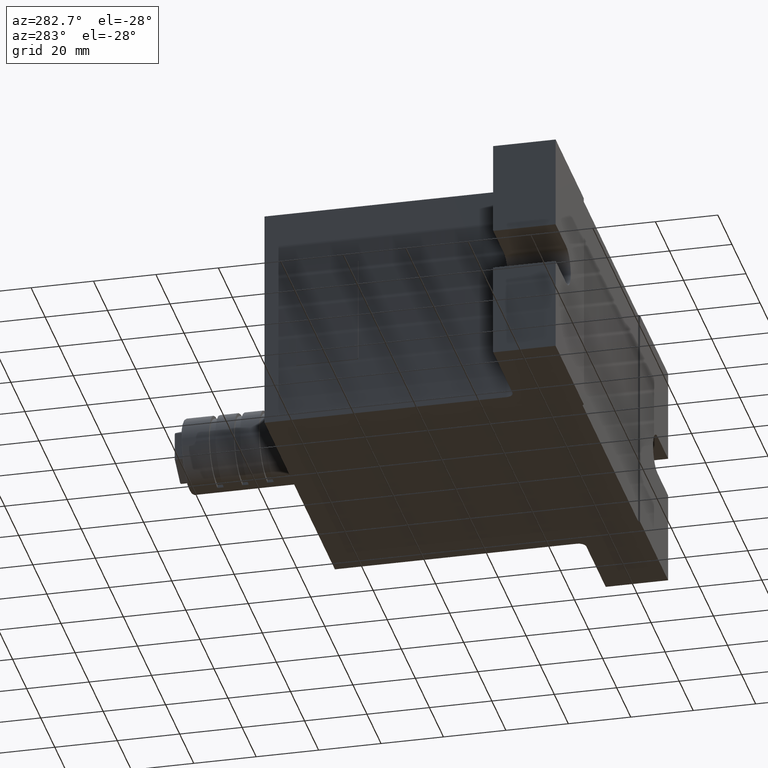
[diagram: clean part render]
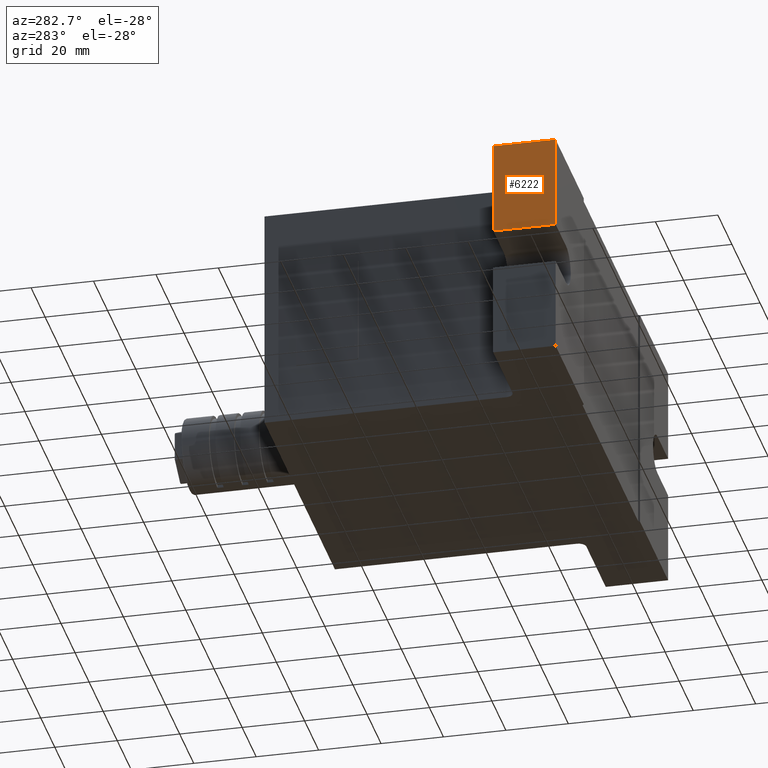
[diagram: same view with one face highlighted and labeled with its STEP entity id]
A machine part, auxiliary view. The second image highlights one B-rep face of the part: STEP entity #6222.
In plain terms, the highlighted planar face has unit normal (1, -0, -0).
Its self-contained STEP definition (entity closure, byte-faithful):
#135 = EDGE_LOOP ( 'NONE', ( #18385, #9309, #6338, #11084 ) ) ;
#857 = VECTOR ( 'NONE', #19238, 1000.000000000000000 ) ;
#939 = CARTESIAN_POINT ( 'NONE',  ( -80.00000000000000000, -30.00000000000000000, -36.50000000000007800 ) ) ;
#1691 = VERTEX_POINT ( 'NONE', #3880 ) ;
#2711 = AXIS2_PLACEMENT_3D ( 'NONE', #14071, #18034, #4487 ) ;
#3880 = CARTESIAN_POINT ( 'NONE',  ( -80.00000000000000000, -50.00000000000000000, 36.49999999999991500 ) ) ;
#4487 = DIRECTION ( 'NONE',  ( -1.627025617018336800E-030, -8.801438384760311500E-031, -1.000000000000000000 ) ) ;
#5269 = CARTESIAN_POINT ( 'NONE',  ( -80.00000000000000000, -50.00000000000000000, 36.49999999999991500 ) ) ;
#5468 = FACE_OUTER_BOUND ( 'NONE', #135, .T. ) ;
#6111 = LINE ( 'NONE', #21761, #21571 ) ;
#6204 = VERTEX_POINT ( 'NONE', #23589 ) ;
#6222 = ADVANCED_FACE ( 'NONE', ( #5468 ), #23430, .F. ) ;
#6338 = ORIENTED_EDGE ( 'NONE', *, *, #16193, .F. ) ;
#7206 = DIRECTION ( 'NONE',  ( -1.627025617018336800E-030, -8.801438384760311500E-031, -1.000000000000000000 ) ) ;
#7583 = LINE ( 'NONE', #5269, #23609 ) ;
#8758 = LINE ( 'NONE', #939, #16198 ) ;
#9309 = ORIENTED_EDGE ( 'NONE', *, *, #16978, .F. ) ;
#9425 = EDGE_CURVE ( 'NONE', #17994, #15824, #8758, .T. ) ;
#11084 = ORIENTED_EDGE ( 'NONE', *, *, #20111, .F. ) ;
#12113 = DIRECTION ( 'NONE',  ( 1.627025617018336800E-030, 8.801438384760311500E-031, 1.000000000000000000 ) ) ;
#14071 = CARTESIAN_POINT ( 'NONE',  ( -80.00000000000000000, -50.00000000000000000, 36.49999999999991500 ) ) ;
#15824 = VERTEX_POINT ( 'NONE', #20428 ) ;
#16193 = EDGE_CURVE ( 'NONE', #1691, #6204, #7583, .T. ) ;
#16198 = VECTOR ( 'NONE', #12113, 1000.000000000000000 ) ;
#16978 = EDGE_CURVE ( 'NONE', #6204, #17994, #6111, .T. ) ;
#17994 = VERTEX_POINT ( 'NONE', #19852 ) ;
#18034 = DIRECTION ( 'NONE',  ( 1.000000000000000000, -2.864033143722703800E-060, -1.627025617018336800E-030 ) ) ;
#18385 = ORIENTED_EDGE ( 'NONE', *, *, #9425, .F. ) ;
#19238 = DIRECTION ( 'NONE',  ( 0.0000000000000000000, -1.000000000000000000, -8.801438384760299300E-031 ) ) ;
#19852 = CARTESIAN_POINT ( 'NONE',  ( -80.00000000000000000, -30.00000000000000000, 6.500000000000009800 ) ) ;
#19909 = LINE ( 'NONE', #24547, #857 ) ;
#20020 = DIRECTION ( 'NONE',  ( 0.0000000000000000000, 1.000000000000000000, 8.801438384760299300E-031 ) ) ;
#20111 = EDGE_CURVE ( 'NONE', #15824, #1691, #19909, .T. ) ;
#20428 = CARTESIAN_POINT ( 'NONE',  ( -80.00000000000000000, -30.00000000000000000, 36.49999999999991500 ) ) ;
#21571 = VECTOR ( 'NONE', #20020, 1000.000000000000000 ) ;
#21761 = CARTESIAN_POINT ( 'NONE',  ( -80.00000000000000000, -50.00000000000000000, 6.500000000000009800 ) ) ;
#23430 = PLANE ( 'NONE',  #2711 ) ;
#23589 = CARTESIAN_POINT ( 'NONE',  ( -80.00000000000000000, -50.00000000000000000, 6.500000000000009800 ) ) ;
#23609 = VECTOR ( 'NONE', #7206, 1000.000000000000000 ) ;
#24547 = CARTESIAN_POINT ( 'NONE',  ( -80.00000000000000000, -50.00000000000000000, 36.49999999999991500 ) ) ;